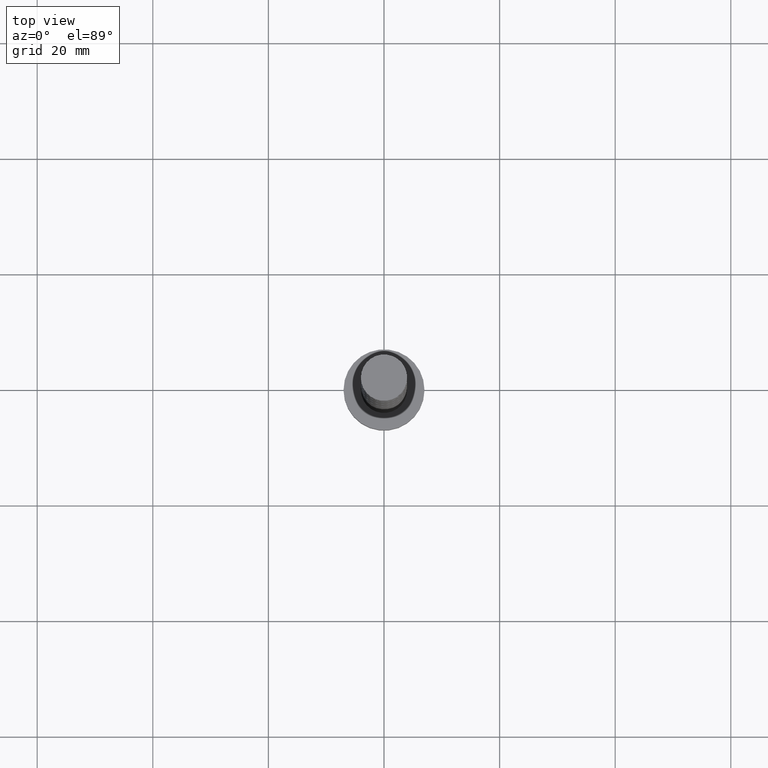
[diagram: clean part render]
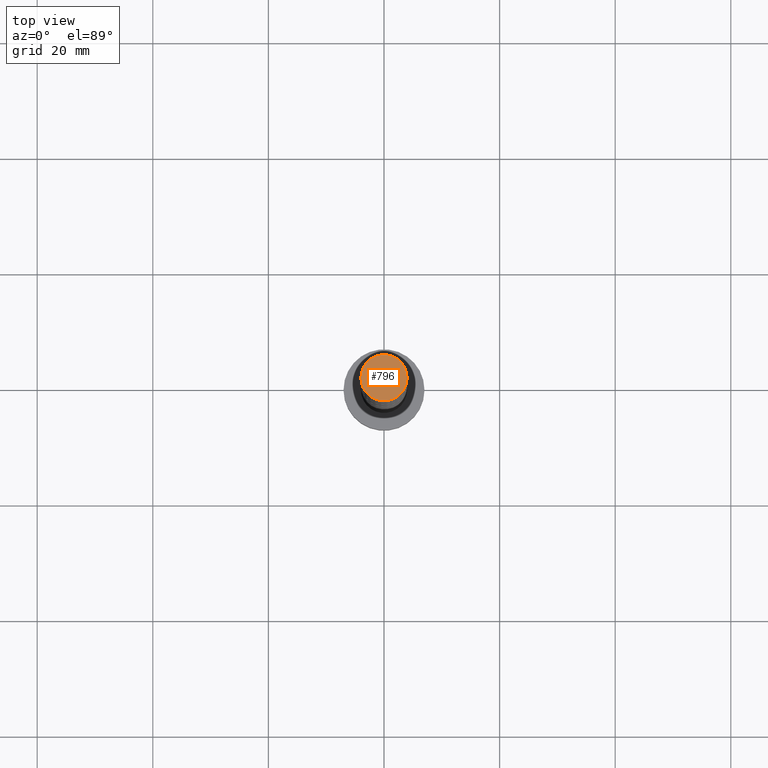
[diagram: same view with one face highlighted and labeled with its STEP entity id]
A machine part, top view. The second image highlights one B-rep face of the part: STEP entity #796.
In plain terms, the highlighted planar face has unit normal (0, 0, 1).
Its self-contained STEP definition (entity closure, byte-faithful):
#146 = PLANE ( 'NONE',  #1068 ) ;
#160 = EDGE_CURVE ( 'NONE', #664, #1375, #523, .T. ) ;
#187 = EDGE_LOOP ( 'NONE', ( #343, #1388 ) ) ;
#189 = DIRECTION ( 'NONE',  ( 1.000000000000000000, 0.000000000000000000, 0.000000000000000000 ) ) ;
#310 = CARTESIAN_POINT ( 'NONE',  ( 4.000000000000000000, 4.898587196589412829E-16, 125.0000000000000000 ) ) ;
#341 = AXIS2_PLACEMENT_3D ( 'NONE', #1003, #902, #189 ) ;
#343 = ORIENTED_EDGE ( 'NONE', *, *, #1130, .T. ) ;
#435 = CARTESIAN_POINT ( 'NONE',  ( -4.000000000000000000, 0.000000000000000000, 125.0000000000000000 ) ) ;
#523 = CIRCLE ( 'NONE', #1510, 4.000000000000000000 ) ;
#664 = VERTEX_POINT ( 'NONE', #310 ) ;
#720 = CARTESIAN_POINT ( 'NONE',  ( 0.000000000000000000, 0.000000000000000000, 125.0000000000000000 ) ) ;
#796 = ADVANCED_FACE ( 'NONE', ( #1229 ), #146, .T. ) ;
#869 = CARTESIAN_POINT ( 'NONE',  ( 0.000000000000000000, 0.000000000000000000, 125.0000000000000000 ) ) ;
#902 = DIRECTION ( 'NONE',  ( 0.000000000000000000, 0.000000000000000000, 1.000000000000000000 ) ) ;
#973 = DIRECTION ( 'NONE',  ( 0.000000000000000000, 0.000000000000000000, 1.000000000000000000 ) ) ;
#1003 = CARTESIAN_POINT ( 'NONE',  ( 0.000000000000000000, 0.000000000000000000, 125.0000000000000000 ) ) ;
#1004 = DIRECTION ( 'NONE',  ( 1.000000000000000000, 0.000000000000000000, 0.000000000000000000 ) ) ;
#1068 = AXIS2_PLACEMENT_3D ( 'NONE', #869, #1441, #1339 ) ;
#1130 = EDGE_CURVE ( 'NONE', #1375, #664, #1220, .T. ) ;
#1220 = CIRCLE ( 'NONE', #341, 4.000000000000000000 ) ;
#1229 = FACE_OUTER_BOUND ( 'NONE', #187, .T. ) ;
#1339 = DIRECTION ( 'NONE',  ( 1.000000000000000000, 0.000000000000000000, -0.000000000000000000 ) ) ;
#1375 = VERTEX_POINT ( 'NONE', #435 ) ;
#1388 = ORIENTED_EDGE ( 'NONE', *, *, #160, .T. ) ;
#1441 = DIRECTION ( 'NONE',  ( 0.000000000000000000, 0.000000000000000000, 1.000000000000000000 ) ) ;
#1510 = AXIS2_PLACEMENT_3D ( 'NONE', #720, #973, #1004 ) ;